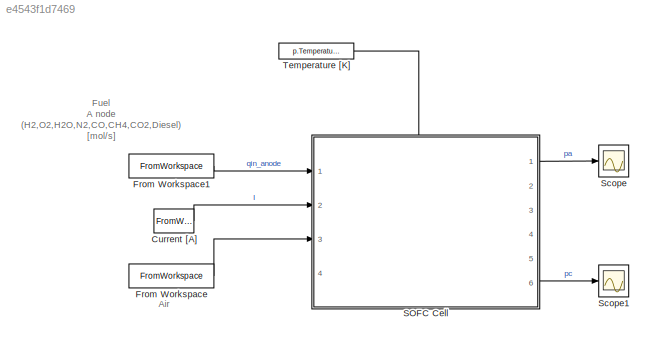
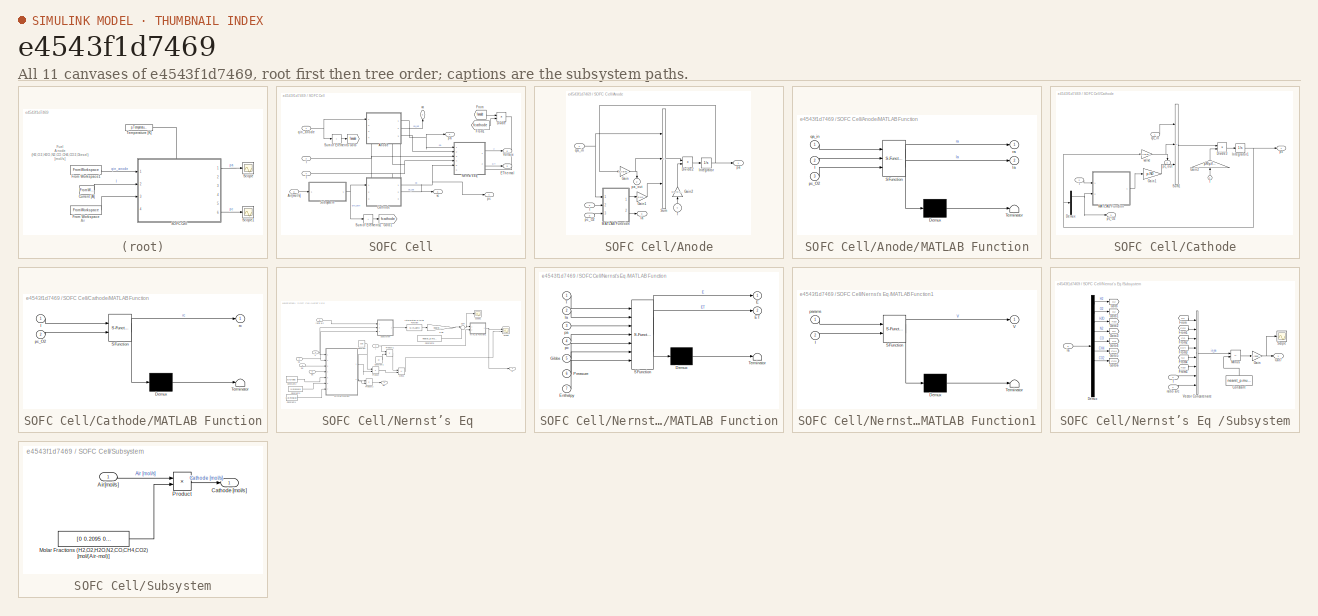
[diagram: thumbnail index - all 11 canvases of the model, root first then tree order]
MODEL slx_e4543f1d7469
KIND model
CONFIG AbsTol = auto
CONFIG EnableMultiTasking = off
CONFIG FixedStep = auto
CONFIG MaxStep = auto
CONFIG MinStep = auto
CONFIG RelTol = 1e-3
CONFIG SampleTimeConstraint = Unconstrained
CONFIG SolverName = VariableStepAuto
CONFIG StartTime = 0.0
CONFIG StopTime = 1037
BLOCK [FromWorkspace] Current [A]
  VariableName = I_signal
BLOCK [FromWorkspace] From Workspace
  VariableName = air_mol_inlet_flow
BLOCK [FromWorkspace] From Workspace1
  VariableName = anode_mol_inlet_flow
BLOCK [SubSystem] SOFC Cell
  PortSchema = {"entries":[{"content":{"sides":[{"content":{"connectorIds":["In1","In2","In3"]},"type":"ConnectorPlacement.EquallySpacedRectSide","uuid":"6cca8e4f-6db2-48de-a60a-b6fbc16877c6"},{"content":{"connectorIds":["Out1","Out2","Out3","Out4"],"side":"RIGHT"},"type":"ConnectorPlacement.EquallySpacedRectSide","uuid":"c481f6d1-531d-4215-9ae0-5807376c0625"},{"content":{"connectorIds":["In4"],"side":"TOP"},"ty...<+435ch>
  Ports = [4, 6]
  RequestExecContextInheritance = off
BLOCK [Inport] SOFC Cell/Air[mol//s]
  Port = 3
BLOCK [SubSystem] SOFC Cell/Anode
  NameLocation = top
  PortSchema = {"entries":[{"content":{"sides":[{"content":{"connectorIds":["In1"]},"type":"ConnectorPlacement.EquallySpacedRectSide","uuid":"1d27f661-9cb9-482d-ac43-89e84d52643b"},{"content":{"connectorIds":["Out1","Out2","Out3"],"side":"RIGHT"},"type":"ConnectorPlacement.EquallySpacedRectSide","uuid":"62ac897d-5819-4e9c-a19f-e210851aefa2"},{"content":{"connectorIds":[],"side":"TOP"},"type":"ConnectorPlacement....<+415ch>
  Ports = [4, 3]
  RequestExecContextInheritance = off
BLOCK [Product] SOFC Cell/Anode/Divide2
  Inputs = **
  Ports = [2, 1]
BLOCK [Gain] SOFC Cell/Anode/Gain
  Gain = p.ValveConstants_an
BLOCK [Gain] SOFC Cell/Anode/Gain1
  Gain = p.N0
BLOCK [Gain] SOFC Cell/Anode/Gain2
  Gain = p.R/p.Vanode
  NameLocation = right
BLOCK [Inport] SOFC Cell/Anode/I
  Port = 2
BLOCK [Integrator] SOFC Cell/Anode/Integrator
  InitialCondition = x0_SOFC.pa
  Ports = [1, 1]
BLOCK [SubSystem] SOFC Cell/Anode/MATLAB Function
  ErrorFcn = Stateflow.Translate.translate
  PermitHierarchicalResolution = ExplicitOnly
  Ports = [3, 2]
  RequestExecContextInheritance = off
  SFBlockType = MATLAB Function
  TreatAsAtomicUnit = on
BLOCK [Demux] SOFC Cell/Anode/MATLAB Function/ Demux 
  Outputs = 1
  Ports = [1, 1]
BLOCK [S-Function] SOFC Cell/Anode/MATLAB Function/ SFunction 
  EnableBusSupport = on
  FunctionName = sf_sfun
  PortCounts = [3 3]
  Ports = [3, 3]
  SFcnIsStateOwnerBlock = off
  SFunctionDeploymentMode = off
  Tag = Stateflow S-Function 2
BLOCK [Terminator] SOFC Cell/Anode/MATLAB Function/ Terminator 
BLOCK [Inport] SOFC Cell/Anode/MATLAB Function/I
  Port = 2
BLOCK [Outport] SOFC Cell/Anode/MATLAB Function/la
  Port = 2
BLOCK [Inport] SOFC Cell/Anode/MATLAB Function/pc_O2
  Port = 3
BLOCK [Inport] SOFC Cell/Anode/MATLAB Function/qa_in
BLOCK [Outport] SOFC Cell/Anode/MATLAB Function/ra
BLOCK [Sum] SOFC Cell/Anode/Sum
  IconShape = rectangular
  Inputs = |+-+
  Ports = [3, 1]
BLOCK [Inport] SOFC Cell/Anode/T
  NameLocation = right
  Port = 4
BLOCK [Outport] SOFC Cell/Anode/la
  Port = 3
BLOCK [Outport] SOFC Cell/Anode/pa
BLOCK [Outport] SOFC Cell/Anode/pa_out
  NameLocation = left
  Port = 2
BLOCK [Inport] SOFC Cell/Anode/pc_O2
  Port = 3
BLOCK [Inport] SOFC Cell/Anode/qa_in
BLOCK [SubSystem] SOFC Cell/Cathode
  PortSchema = {"entries":[{"content":{"sides":[{"content":{"connectorIds":["In1"]},"type":"ConnectorPlacement.EquallySpacedRectSide","uuid":"1d27f661-9cb9-482d-ac43-89e84d52643b"},{"content":{"connectorIds":["Out1","Out2"],"side":"RIGHT"},"type":"ConnectorPlacement.EquallySpacedRectSide","uuid":"62ac897d-5819-4e9c-a19f-e210851aefa2"},{"content":{"connectorIds":["In2","Out3","In3"],"side":"TOP"},"type":"Connecto...<+265ch>
  Ports = [3, 3]
  RequestExecContextInheritance = off
BLOCK [Demux] SOFC Cell/Cathode/Demux
  Outputs = 8
  Ports = [1, 8]
BLOCK [Product] SOFC Cell/Cathode/Divide3
  Inputs = **
  Ports = [2, 1]
BLOCK [Gain] SOFC Cell/Cathode/Gain1
  Gain = p.N0
BLOCK [Gain] SOFC Cell/Cathode/Gain2
  Gain = p.R/p.Vcatho
  NameLocation = right
BLOCK [Inport] SOFC Cell/Cathode/I
  Port = 2
BLOCK [Integrator] SOFC Cell/Cathode/Integrator1
  InitialCondition = x0_SOFC.pc
  Ports = [1, 1]
BLOCK [SubSystem] SOFC Cell/Cathode/MATLAB Function
  ErrorFcn = Stateflow.Translate.translate
  PermitHierarchicalResolution = ExplicitOnly
  Ports = [2, 1]
  RequestExecContextInheritance = off
  SFBlockType = MATLAB Function
  TreatAsAtomicUnit = on
BLOCK [Demux] SOFC Cell/Cathode/MATLAB Function/ Demux 
  Outputs = 1
  Ports = [1, 1]
BLOCK [S-Function] SOFC Cell/Cathode/MATLAB Function/ SFunction 
  EnableBusSupport = on
  FunctionName = sf_sfun
  PortCounts = [2 2]
  Ports = [2, 2]
  SFcnIsStateOwnerBlock = off
  SFunctionDeploymentMode = off
  Tag = Stateflow S-Function 1
BLOCK [Terminator] SOFC Cell/Cathode/MATLAB Function/ Terminator 
BLOCK [Inport] SOFC Cell/Cathode/MATLAB Function/I
BLOCK [Inport] SOFC Cell/Cathode/MATLAB Function/pc_O2
  Port = 2
BLOCK [Outport] SOFC Cell/Cathode/MATLAB Function/rc
BLOCK [Sum] SOFC Cell/Cathode/Sum1
  IconShape = rectangular
  Inputs = |+-+
  Ports = [3, 1]
BLOCK [Inport] SOFC Cell/Cathode/T
  NameLocation = right
  Port = 3
BLOCK [Outport] SOFC Cell/Cathode/pc
BLOCK [Outport] SOFC Cell/Cathode/pc_O2
  Port = 3
BLOCK [Outport] SOFC Cell/Cathode/pc_out
  NameLocation = left
  Port = 2
BLOCK [Inport] SOFC Cell/Cathode/qc_in
BLOCK [Gain] SOFC Cell/Cathode/valve
  Gain = p.ValveConstants_cath
BLOCK [Product] SOFC Cell/Divide
  Inputs = /*
  Ports = [2, 1]
BLOCK [Outport] SOFC Cell/EThermal
  Port = 5
BLOCK [From] SOFC Cell/From
  GotoTag = fanode
BLOCK [From] SOFC Cell/From1
  GotoTag = fcathode
BLOCK [Goto] SOFC Cell/Goto
  GotoTag = fanode
BLOCK [Goto] SOFC Cell/Goto1
  GotoTag = fcathode
BLOCK [Inport] SOFC Cell/I
  Port = 2
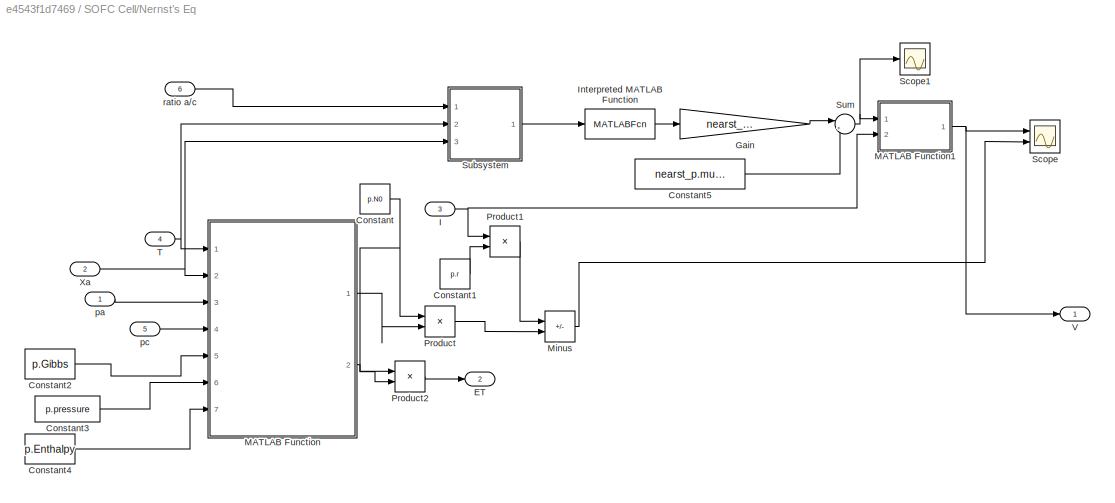
BLOCK [SubSystem] SOFC Cell/Nernst’s Eq 
  PortSchema = {"entries":[{"content":{"sides":[{"content":{"connectorIds":["In1","In2","In3","In4","In5"]},"type":"ConnectorPlacement.EquallySpacedRectSide","uuid":"1b300774-e64d-4a8a-a2e9-ecdc71723fee"},{"content":{"connectorIds":["Out1","Out2"],"side":"RIGHT"},"type":"ConnectorPlacement.EquallySpacedRectSide","uuid":"354a04f1-cc66-4a63-8c50-8080316e29e9"},{"content":{"connectorIds":["In6"],"side":"TOP"},"type...<+276ch>
  Ports = [6, 2]
  RequestExecContextInheritance = off
BLOCK [Constant] SOFC Cell/Nernst’s Eq /Constant
  Value = p.N0
BLOCK [Constant] SOFC Cell/Nernst’s Eq /Constant1
  Value = p.r
BLOCK [Constant] SOFC Cell/Nernst’s Eq /Constant2
  OutDataTypeStr = Bus:slBus1
  Value = p.Gibbs
BLOCK [Constant] SOFC Cell/Nernst’s Eq /Constant3
  Value = p.pressure
BLOCK [Constant] SOFC Cell/Nernst’s Eq /Constant4
  OutDataTypeStr = Bus:slBus1
  Value = p.Enthalpy
BLOCK [Constant] SOFC Cell/Nernst’s Eq /Constant5
  Value = nearst_p.mu_out
BLOCK [Outport] SOFC Cell/Nernst’s Eq /ET
  Port = 2
BLOCK [Gain] SOFC Cell/Nernst’s Eq /Gain
  Gain = nearst_p.std_out
BLOCK [Inport] SOFC Cell/Nernst’s Eq /I
  Port = 3
BLOCK [MATLABFcn] SOFC Cell/Nernst’s Eq /Interpreted MATLAB Function
  MATLABFcn = nearst_nn
  Ports = [1, 1]
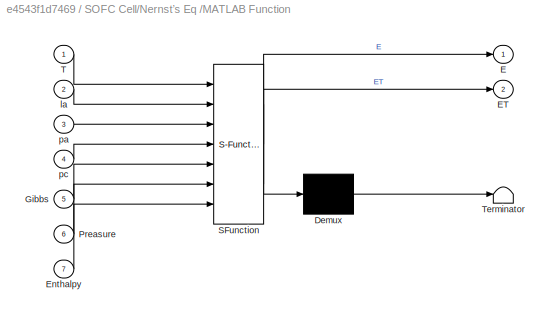
BLOCK [SubSystem] SOFC Cell/Nernst’s Eq /MATLAB Function
  ErrorFcn = Stateflow.Translate.translate
  PermitHierarchicalResolution = ExplicitOnly
  Ports = [7, 2]
  RequestExecContextInheritance = off
  SFBlockType = MATLAB Function
  TreatAsAtomicUnit = on
BLOCK [Demux] SOFC Cell/Nernst’s Eq /MATLAB Function/ Demux 
  Outputs = 1
  Ports = [1, 1]
BLOCK [S-Function] SOFC Cell/Nernst’s Eq /MATLAB Function/ SFunction 
  EnableBusSupport = on
  FunctionName = sf_sfun
  PortCounts = [7 3]
  Ports = [7, 3]
  SFcnIsStateOwnerBlock = off
  SFunctionDeploymentMode = off
  Tag = Stateflow S-Function 3
BLOCK [Terminator] SOFC Cell/Nernst’s Eq /MATLAB Function/ Terminator 
BLOCK [Outport] SOFC Cell/Nernst’s Eq /MATLAB Function/E
BLOCK [Outport] SOFC Cell/Nernst’s Eq /MATLAB Function/ET
  Port = 2
BLOCK [Inport] SOFC Cell/Nernst’s Eq /MATLAB Function/Enthalpy
  Port = 7
BLOCK [Inport] SOFC Cell/Nernst’s Eq /MATLAB Function/Gibbs
  Port = 5
BLOCK [Inport] SOFC Cell/Nernst’s Eq /MATLAB Function/Preasure
  Port = 6
BLOCK [Inport] SOFC Cell/Nernst’s Eq /MATLAB Function/T
BLOCK [Inport] SOFC Cell/Nernst’s Eq /MATLAB Function/la
  Port = 2
BLOCK [Inport] SOFC Cell/Nernst’s Eq /MATLAB Function/pa
  Port = 3
BLOCK [Inport] SOFC Cell/Nernst’s Eq /MATLAB Function/pc
  Port = 4
BLOCK [SubSystem] SOFC Cell/Nernst’s Eq /MATLAB Function1
  ErrorFcn = Stateflow.Translate.translate
  PermitHierarchicalResolution = ExplicitOnly
  Ports = [2, 1]
  RequestExecContextInheritance = off
  SFBlockType = MATLAB Function
  TreatAsAtomicUnit = on
BLOCK [Demux] SOFC Cell/Nernst’s Eq /MATLAB Function1/ Demux 
  Outputs = 1
  Ports = [1, 1]
BLOCK [S-Function] SOFC Cell/Nernst’s Eq /MATLAB Function1/ SFunction 
  EnableBusSupport = on
  FunctionName = sf_sfun
  PortCounts = [2 2]
  Ports = [2, 2]
  SFcnIsStateOwnerBlock = off
  SFunctionDeploymentMode = off
  Tag = Stateflow S-Function 4
BLOCK [Terminator] SOFC Cell/Nernst’s Eq /MATLAB Function1/ Terminator 
BLOCK [Inport] SOFC Cell/Nernst’s Eq /MATLAB Function1/I
  Port = 2
BLOCK [Outport] SOFC Cell/Nernst’s Eq /MATLAB Function1/V
BLOCK [Inport] SOFC Cell/Nernst’s Eq /MATLAB Function1/params
BLOCK [Sum] SOFC Cell/Nernst’s Eq /Minus
  IconShape = rectangular
  Inputs = -+
  Ports = [2, 1]
BLOCK [Product] SOFC Cell/Nernst’s Eq /Product
  Ports = [2, 1]
BLOCK [Product] SOFC Cell/Nernst’s Eq /Product1
  Ports = [2, 1]
BLOCK [Product] SOFC Cell/Nernst’s Eq /Product2
  Ports = [2, 1]
BLOCK [Scope] SOFC Cell/Nernst’s Eq /Scope
  Floating = off
  NumInputPorts = 2
  Ports = [2]
  ScopeSpecificationString = Simulink.scopes.TimeScopeBlockCfg('CurrentConfiguration', extmgr.ConfigurationSet(extmgr.Configuration('Core','General UI',true),extmgr.Configuration('Core','Source UI',true),extmgr.Configuration('Sources','WiredSimulink',true,'DataLoggingVariableName','ScopeData2'),extmgr.Configuration('Visuals','Time Domain',true,'SerializedDisplays',{struct('MinYLimReal','12.6732','MaxYLimReal','30.95476','YLab...<+1409ch>
BLOCK [Scope] SOFC Cell/Nernst’s Eq /Scope1
  Floating = off
  NumInputPorts = 1
  Ports = [1]
  ScopeSpecificationString = Simulink.scopes.TimeScopeBlockCfg('CurrentConfiguration', extmgr.ConfigurationSet(extmgr.Configuration('Core','General UI',true),extmgr.Configuration('Core','Source UI',true),extmgr.Configuration('Sources','WiredSimulink',true,'DataLoggingVariableName','ScopeData3'),extmgr.Configuration('Visuals','Time Domain',true,'SerializedDisplays',{struct('MinYLimReal','-4.125','MaxYLimReal','29.65872','YLabe...<+1427ch>
BLOCK [SubSystem] SOFC Cell/Nernst’s Eq /Subsystem
  Ports = [3, 1]
  RequestExecContextInheritance = off
BLOCK [Constant] SOFC Cell/Nernst’s Eq /Subsystem/Constant
  NameLocation = right
  Value = nearst_p.mu_in
BLOCK [Demux] SOFC Cell/Nernst’s Eq /Subsystem/Demux
  Outputs = 10
  Ports = [1, 10]
BLOCK [From] SOFC Cell/Nernst’s Eq /Subsystem/From
  GotoTag = H2
BLOCK [From] SOFC Cell/Nernst’s Eq /Subsystem/From1
  GotoTag = CO2
BLOCK [From] SOFC Cell/Nernst’s Eq /Subsystem/From2
  GotoTag = CO
BLOCK [From] SOFC Cell/Nernst’s Eq /Subsystem/From3
  GotoTag = CH4
BLOCK [From] SOFC Cell/Nernst’s Eq /Subsystem/From4
  GotoTag = N2
BLOCK [From] SOFC Cell/Nernst’s Eq /Subsystem/From5
  GotoTag = H2O
BLOCK [Gain] SOFC Cell/Nernst’s Eq /Subsystem/Gain
  Gain = 1./nearst_p.std_in
BLOCK [Goto] SOFC Cell/Nernst’s Eq /Subsystem/Goto
  GotoTag = H2
BLOCK [Goto] SOFC Cell/Nernst’s Eq /Subsystem/Goto1
  GotoTag = O2
BLOCK [Goto] SOFC Cell/Nernst’s Eq /Subsystem/Goto2
  GotoTag = H2O
BLOCK [Goto] SOFC Cell/Nernst’s Eq /Subsystem/Goto3
  GotoTag = N2
BLOCK [Goto] SOFC Cell/Nernst’s Eq /Subsystem/Goto4
  GotoTag = CO
BLOCK [Goto] SOFC Cell/Nernst’s Eq /Subsystem/Goto5
  GotoTag = CH4
BLOCK [Goto] SOFC Cell/Nernst’s Eq /Subsystem/Goto6
  GotoTag = CO2
BLOCK [Sum] SOFC Cell/Nernst’s Eq /Subsystem/Minus
  IconShape = rectangular
  Inputs = +-
  Ports = [2, 1]
BLOCK [Outport] SOFC Cell/Nernst’s Eq /Subsystem/Out7
BLOCK [Scope] SOFC Cell/Nernst’s Eq /Subsystem/Scope
  Floating = off
  NumInputPorts = 1
  Ports = [1]
  ScopeSpecificationString = Simulink.scopes.TimeScopeBlockCfg('CurrentConfiguration', extmgr.ConfigurationSet(extmgr.Configuration('Core','General UI',true),extmgr.Configuration('Core','Source UI',true),extmgr.Configuration('Sources','WiredSimulink',true,'DataLoggingVariableName','ScopeData1'),extmgr.Configuration('Visuals','Time Domain',true,'SerializedDisplays',{struct('MinYLimReal','-1.13305','MaxYLimReal','1.86452','YLab...<+1483ch>
BLOCK [Inport] SOFC Cell/Nernst’s Eq /Subsystem/T
  Port = 2
BLOCK [Concatenate] SOFC Cell/Nernst’s Eq /Subsystem/Vector Concatenate
  NumInputs = 8
  Ports = [8, 1]
BLOCK [Inport] SOFC Cell/Nernst’s Eq /Subsystem/la
  Port = 3
BLOCK [Inport] SOFC Cell/Nernst’s Eq /Subsystem/ratio a//c
BLOCK [Sum] SOFC Cell/Nernst’s Eq /Sum
  Inputs = |++
  Ports = [2, 1]
BLOCK [Inport] SOFC Cell/Nernst’s Eq /T
  Port = 4
BLOCK [Outport] SOFC Cell/Nernst’s Eq /V
BLOCK [Inport] SOFC Cell/Nernst’s Eq /Xa
  Port = 2
BLOCK [Inport] SOFC Cell/Nernst’s Eq /pa
BLOCK [Inport] SOFC Cell/Nernst’s Eq /pc
  Port = 5
BLOCK [Inport] SOFC Cell/Nernst’s Eq /ratio a//c
  Port = 6
BLOCK [SubSystem] SOFC Cell/Subsystem
  Ports = [1, 1]
  RequestExecContextInheritance = off
BLOCK [Inport] SOFC Cell/Subsystem/Air[mol//s]
BLOCK [Outport] SOFC Cell/Subsystem/Cathode [mol//s]
BLOCK [Constant] SOFC Cell/Subsystem/Molar Fractions (H2,O2,H2O,N2,CO,CH4,CO2) [mol//(Air-mol)]
  Value = [0 0.2095 0 0.7808 0 0 0 0 0 0]
BLOCK [Product] SOFC Cell/Subsystem/Product
  Ports = [2, 1]
BLOCK [Sum] SOFC Cell/Sum of Elements
  IconShape = rectangular
  Inputs = +
  Ports = [1, 1]
BLOCK [Sum] SOFC Cell/Sum of Elements1
  IconShape = rectangular
  Inputs = +
  Ports = [1, 1]
BLOCK [Inport] SOFC Cell/T
  Port = 4
BLOCK [Outport] SOFC Cell/Voltaje
  Port = 6
BLOCK [Outport] SOFC Cell/pa
BLOCK [Outport] SOFC Cell/pc
  Port = 4
BLOCK [Inport] SOFC Cell/qin_anode
BLOCK [Outport] SOFC Cell/va
  NameLocation = right
  Port = 2
BLOCK [Outport] SOFC Cell/vc
  Port = 3
BLOCK [Scope] Scope
  Floating = off
  NumInputPorts = 1
  Ports = [1]
  ScopeSpecificationString = Simulink.scopes.TimeScopeBlockCfg('CurrentConfiguration', extmgr.ConfigurationSet(extmgr.Configuration('Core','General UI',true),extmgr.Configuration('Core','Source UI',true),extmgr.Configuration('Sources','WiredSimulink',true,'DataLoggingVariableName','ScopeData1'),extmgr.Configuration('Visuals','Time Domain',true,'SerializedDisplays',{struct('MinYLimReal','-5.5002','MaxYLimReal','49.50178','YLab...<+1442ch>
BLOCK [Scope] Scope1
  Floating = off
  NumInputPorts = 1
  Ports = [1]
  ScopeSpecificationString = Simulink.scopes.TimeScopeBlockCfg('CurrentConfiguration', extmgr.ConfigurationSet(extmgr.Configuration('Core','General UI',true),extmgr.Configuration('Core','Source UI',true),extmgr.Configuration('Sources','WiredSimulink',true,'DataLoggingVariableName','ScopeData1'),extmgr.Configuration('Visuals','Time Domain',true,'SerializedDisplays',{struct('MinYLimReal','-7.63549','MaxYLimReal','36.27041','YLa...<+1480ch>
BLOCK [Constant] Temperature [K]
  Value = p.Temperature
ANNOTATION (root): Fuel A node (H2,O2,H2O,N2,CO,CH4,CO2,Diesel) [mol/s]
ANNOTATION (root): Air
LINE Current [A]:1 -> SOFC Cell:2
LINE From Workspace1:1 -> SOFC Cell:1
LINE From Workspace:1 -> SOFC Cell:3
LINE SOFC Cell/Air[mol//s]:1 -> SOFC Cell/Subsystem:1
LINE SOFC Cell/Anode/Divide2:1 -> SOFC Cell/Anode/Integrator:1
LINE SOFC Cell/Anode/Gain1:1 -> SOFC Cell/Anode/Sum:3
LINE SOFC Cell/Anode/Gain2:1 -> SOFC Cell/Anode/Divide2:2
NET SOFC Cell/Anode/Gain:1 -> SOFC Cell/Anode/Sum:2, SOFC Cell/Anode/pa_out:1
LINE SOFC Cell/Anode/I:1 -> SOFC Cell/Anode/MATLAB Function:2
NET SOFC Cell/Anode/Integrator:1 -> SOFC Cell/Anode/Gain:1, SOFC Cell/Anode/pa:1
LINE SOFC Cell/Anode/MATLAB Function:1 -> SOFC Cell/Anode/Gain1:1
LINE SOFC Cell/Anode/MATLAB Function:2 -> SOFC Cell/Anode/la:1
LINE SOFC Cell/Anode/Sum:1 -> SOFC Cell/Anode/Divide2:1
LINE SOFC Cell/Anode/T:1 -> SOFC Cell/Anode/Gain2:1
LINE SOFC Cell/Anode/pc_O2:1 -> SOFC Cell/Anode/MATLAB Function:3
NET SOFC Cell/Anode/qa_in:1 -> SOFC Cell/Anode/MATLAB Function:1, SOFC Cell/Anode/Sum:1
NET SOFC Cell/Anode:1 -> SOFC Cell/Nernst’s Eq :1, SOFC Cell/pa:1
LINE SOFC Cell/Anode:2 -> SOFC Cell/va:1
LINE SOFC Cell/Anode:3 -> SOFC Cell/Nernst’s Eq :2
NET SOFC Cell/Cathode/Demux:2 -> SOFC Cell/Cathode/MATLAB Function:2, SOFC Cell/Cathode/pc_O2:1
LINE SOFC Cell/Cathode/Divide3:1 -> SOFC Cell/Cathode/Integrator1:1
LINE SOFC Cell/Cathode/Gain1:1 -> SOFC Cell/Cathode/Sum1:3
LINE SOFC Cell/Cathode/Gain2:1 -> SOFC Cell/Cathode/Divide3:2
LINE SOFC Cell/Cathode/I:1 -> SOFC Cell/Cathode/MATLAB Function:1
NET SOFC Cell/Cathode/Integrator1:1 -> SOFC Cell/Cathode/Demux:1, SOFC Cell/Cathode/pc:1, SOFC Cell/Cathode/valve:1
LINE SOFC Cell/Cathode/MATLAB Function:1 -> SOFC Cell/Cathode/Gain1:1
LINE SOFC Cell/Cathode/Sum1:1 -> SOFC Cell/Cathode/Divide3:1
LINE SOFC Cell/Cathode/T:1 -> SOFC Cell/Cathode/Gain2:1
LINE SOFC Cell/Cathode/qc_in:1 -> SOFC Cell/Cathode/Sum1:1
NET SOFC Cell/Cathode/valve:1 -> SOFC Cell/Cathode/Sum1:2, SOFC Cell/Cathode/pc_out:1
NET SOFC Cell/Cathode:1 -> SOFC Cell/Nernst’s Eq :5, SOFC Cell/pc:1
LINE SOFC Cell/Cathode:2 -> SOFC Cell/vc:1
LINE SOFC Cell/Cathode:3 -> SOFC Cell/Anode:3
LINE SOFC Cell/Divide:1 -> SOFC Cell/Nernst’s Eq :6
LINE SOFC Cell/From1:1 -> SOFC Cell/Divide:2
LINE SOFC Cell/From:1 -> SOFC Cell/Divide:1
NET SOFC Cell/I:1 -> SOFC Cell/Anode:2, SOFC Cell/Cathode:2, SOFC Cell/Nernst’s Eq :3
LINE SOFC Cell/Nernst’s Eq /Constant1:1 -> SOFC Cell/Nernst’s Eq /Product1:2
LINE SOFC Cell/Nernst’s Eq /Constant2:1 -> SOFC Cell/Nernst’s Eq /MATLAB Function:5
LINE SOFC Cell/Nernst’s Eq /Constant3:1 -> SOFC Cell/Nernst’s Eq /MATLAB Function:6
LINE SOFC Cell/Nernst’s Eq /Constant4:1 -> SOFC Cell/Nernst’s Eq /MATLAB Function:7
LINE SOFC Cell/Nernst’s Eq /Constant5:1 -> SOFC Cell/Nernst’s Eq /Sum:2
NET SOFC Cell/Nernst’s Eq /Constant:1 -> SOFC Cell/Nernst’s Eq /Product2:1, SOFC Cell/Nernst’s Eq /Product:1
LINE SOFC Cell/Nernst’s Eq /Gain:1 -> SOFC Cell/Nernst’s Eq /Sum:1
NET SOFC Cell/Nernst’s Eq /I:1 -> SOFC Cell/Nernst’s Eq /MATLAB Function1:2, SOFC Cell/Nernst’s Eq /Product1:1
LINE SOFC Cell/Nernst’s Eq /Interpreted MATLAB Function:1 -> SOFC Cell/Nernst’s Eq /Gain:1
NET SOFC Cell/Nernst’s Eq /MATLAB Function1:1 -> SOFC Cell/Nernst’s Eq /Scope:1, SOFC Cell/Nernst’s Eq /V:1
LINE SOFC Cell/Nernst’s Eq /MATLAB Function:1 -> SOFC Cell/Nernst’s Eq /Product:2
LINE SOFC Cell/Nernst’s Eq /MATLAB Function:2 -> SOFC Cell/Nernst’s Eq /Product2:2
LINE SOFC Cell/Nernst’s Eq /Minus:1 -> SOFC Cell/Nernst’s Eq /Scope:2
LINE SOFC Cell/Nernst’s Eq /Product1:1 -> SOFC Cell/Nernst’s Eq /Minus:1
LINE SOFC Cell/Nernst’s Eq /Product2:1 -> SOFC Cell/Nernst’s Eq /ET:1
LINE SOFC Cell/Nernst’s Eq /Product:1 -> SOFC Cell/Nernst’s Eq /Minus:2
LINE SOFC Cell/Nernst’s Eq /Subsystem/Constant:1 -> SOFC Cell/Nernst’s Eq /Subsystem/Minus:2
LINE SOFC Cell/Nernst’s Eq /Subsystem/Demux:1 -> SOFC Cell/Nernst’s Eq /Subsystem/Goto:1
LINE SOFC Cell/Nernst’s Eq /Subsystem/Demux:2 -> SOFC Cell/Nernst’s Eq /Subsystem/Goto1:1
LINE SOFC Cell/Nernst’s Eq /Subsystem/Demux:3 -> SOFC Cell/Nernst’s Eq /Subsystem/Goto2:1
LINE SOFC Cell/Nernst’s Eq /Subsystem/Demux:4 -> SOFC Cell/Nernst’s Eq /Subsystem/Goto3:1
LINE SOFC Cell/Nernst’s Eq /Subsystem/Demux:5 -> SOFC Cell/Nernst’s Eq /Subsystem/Goto4:1
LINE SOFC Cell/Nernst’s Eq /Subsystem/Demux:6 -> SOFC Cell/Nernst’s Eq /Subsystem/Goto5:1
LINE SOFC Cell/Nernst’s Eq /Subsystem/Demux:7 -> SOFC Cell/Nernst’s Eq /Subsystem/Goto6:1
LINE SOFC Cell/Nernst’s Eq /Subsystem/From1:1 -> SOFC Cell/Nernst’s Eq /Subsystem/Vector Concatenate:2
LINE SOFC Cell/Nernst’s Eq /Subsystem/From2:1 -> SOFC Cell/Nernst’s Eq /Subsystem/Vector Concatenate:3
LINE SOFC Cell/Nernst’s Eq /Subsystem/From3:1 -> SOFC Cell/Nernst’s Eq /Subsystem/Vector Concatenate:4
LINE SOFC Cell/Nernst’s Eq /Subsystem/From4:1 -> SOFC Cell/Nernst’s Eq /Subsystem/Vector Concatenate:5
LINE SOFC Cell/Nernst’s Eq /Subsystem/From5:1 -> SOFC Cell/Nernst’s Eq /Subsystem/Vector Concatenate:6
LINE SOFC Cell/Nernst’s Eq /Subsystem/From:1 -> SOFC Cell/Nernst’s Eq /Subsystem/Vector Concatenate:1
NET SOFC Cell/Nernst’s Eq /Subsystem/Gain:1 -> SOFC Cell/Nernst’s Eq /Subsystem/Out7:1, SOFC Cell/Nernst’s Eq /Subsystem/Scope:1
LINE SOFC Cell/Nernst’s Eq /Subsystem/Minus:1 -> SOFC Cell/Nernst’s Eq /Subsystem/Gain:1
LINE SOFC Cell/Nernst’s Eq /Subsystem/T:1 -> SOFC Cell/Nernst’s Eq /Subsystem/Vector Concatenate:7
LINE SOFC Cell/Nernst’s Eq /Subsystem/Vector Concatenate:1 -> SOFC Cell/Nernst’s Eq /Subsystem/Minus:1
LINE SOFC Cell/Nernst’s Eq /Subsystem/la:1 -> SOFC Cell/Nernst’s Eq /Subsystem/Demux:1
LINE SOFC Cell/Nernst’s Eq /Subsystem/ratio a//c:1 -> SOFC Cell/Nernst’s Eq /Subsystem/Vector Concatenate:8
LINE SOFC Cell/Nernst’s Eq /Subsystem:1 -> SOFC Cell/Nernst’s Eq /Interpreted MATLAB Function:1
NET SOFC Cell/Nernst’s Eq /Sum:1 -> SOFC Cell/Nernst’s Eq /MATLAB Function1:1, SOFC Cell/Nernst’s Eq /Scope1:1
NET SOFC Cell/Nernst’s Eq /T:1 -> SOFC Cell/Nernst’s Eq /MATLAB Function:1, SOFC Cell/Nernst’s Eq /Subsystem:2
NET SOFC Cell/Nernst’s Eq /Xa:1 -> SOFC Cell/Nernst’s Eq /MATLAB Function:2, SOFC Cell/Nernst’s Eq /Subsystem:3
LINE SOFC Cell/Nernst’s Eq /pa:1 -> SOFC Cell/Nernst’s Eq /MATLAB Function:3
LINE SOFC Cell/Nernst’s Eq /pc:1 -> SOFC Cell/Nernst’s Eq /MATLAB Function:4
LINE SOFC Cell/Nernst’s Eq /ratio a//c:1 -> SOFC Cell/Nernst’s Eq /Subsystem:1
LINE SOFC Cell/Nernst’s Eq :1 -> SOFC Cell/Voltaje:1
LINE SOFC Cell/Nernst’s Eq :2 -> SOFC Cell/EThermal:1
LINE SOFC Cell/Subsystem/Air[mol//s]:1 -> SOFC Cell/Subsystem/Product:1
LINE SOFC Cell/Subsystem/Molar Fractions (H2,O2,H2O,N2,CO,CH4,CO2) [mol//(Air-mol)]:1 -> SOFC Cell/Subsystem/Product:2
LINE SOFC Cell/Subsystem/Product:1 -> SOFC Cell/Subsystem/Cathode [mol//s]:1
NET SOFC Cell/Subsystem:1 -> SOFC Cell/Cathode:1, SOFC Cell/Sum of Elements1:1
LINE SOFC Cell/Sum of Elements1:1 -> SOFC Cell/Goto1:1
LINE SOFC Cell/Sum of Elements:1 -> SOFC Cell/Goto:1
NET SOFC Cell/T:1 -> SOFC Cell/Anode:4, SOFC Cell/Cathode:3, SOFC Cell/Nernst’s Eq :4
NET SOFC Cell/qin_anode:1 -> SOFC Cell/Anode:1, SOFC Cell/Sum of Elements:1
LINE SOFC Cell:1 -> Scope:1
LINE SOFC Cell:4 -> Scope1:1
LINE Temperature [K]:1 -> SOFC Cell:4
note: NET lines group one-source signal fan-out (src -> all destinations, sorted); 1:1 wires keep LINE
CHART SOFC Cell/Cathode/MATLAB Function states=1 transitions=1
  STATE_LABEL 'eML_blk_kernel()'
  STATE_LABEL 'SCRIPT:\nfunction rc = fcn(I,pc_O2)\n\n%l = qc_in/sum(qc_in);\n\n% l_H2  = l(1);\n% l_O2  = l(2);\n% l_H2O = l(3);\n% l_N2  = l(4);\n% l_CO  = l(5);\n% l_CH4 = l(6);\n% l_CO2 = l(7);\n%\n% alpha_H_2 = l_H2;\n% alpha_CO  = l_CO;\n% alpha_CH4 = l_CH4;\n% alpha_O2  = 0.5*(l_H2+l_CO+4*l_CH4);\n% beta_H2O  = l_H2 + 2*l_CH4;\n% beta_CO2  = l_CO + 2*l_CH4;\n%\nF = 96485.3329; \n\n% r_H2  = -alpha_H_2*I;\n% r_CO  = -alpha_CO*I;...<+162ch>'
CHART SOFC Cell/Anode/MATLAB Function states=1 transitions=1
  STATE_LABEL 'eML_blk_kernel()'
  STATE_LABEL 'SCRIPT:\nfunction [ra,la] = fcn(qa_in,I,pc_O2)\n\nla = qa_in/sum(qa_in);\n\nl_H2  = la(1);\n%l_O2  = l(2);\n%l_H2O = l(3);\n%l_N2  = l(4);\nl_CO  = la(5);\nl_CH4 = la(6);\n%l_CO2 = l(7);\n%\nalpha_H2 = l_H2;\nalpha_CO  = l_CO;\nalpha_CH4 = l_CH4;\n%alpha_O2  = 0.5*(l_H2+l_CO+4*l_CH4);\nbeta_H2O  = l_H2 + 2*l_CH4;\nbeta_CO2  = l_CO + l_CH4;\n%\nF = 96485.3329; \nne = 2*(l_H2 + l_CO + 4*l_CH4);\nI = I/(F*ne);\n\nr_H2  = -a...<+177ch>'
CHART SOFC Cell/Nernst’s Eq /MATLAB Function states=1 transitions=1
  STATE_LABEL 'eML_blk_kernel()'
  STATE_LABEL 'SCRIPT:\nfunction [E,ET]= fcn(T, la,pa,pc,Gibbs,Preasure, Enthalpy)\n%\n\nl_H2  = la(1);\nl_CO  = la(5);\nl_CH4 = la(6);\n%\nalpha_H2 = l_H2;\nalpha_CO  = l_CO;\nalpha_CH4 = l_CH4;\nalpha_O2  = 0.5*( l_H2 + l_CO + 4*l_CH4);\nbeta_H2O  = l_H2 + 2*l_CH4;\nbeta_CO2  = l_CO + l_CH4;\n\n%\npa_H2 = pa(1);\npa_O2 = pa(2);\npa_H2O= pa(3);\npa_CO = pa(5);\npa_CH4= pa(6);\npa_CO2= pa(7);\n%\npc_H2 = pc(1);\npc_O2 = pc(2);\npc_H2O= ...<+1008ch>'
CHART SOFC Cell/Nernst’s Eq /MATLAB Function1 states=1 transitions=1
  STATE_LABEL 'eML_blk_kernel()'
  STATE_LABEL 'SCRIPT:\nfunction V = fcn(params, I)\n\nA_esti =  params(1);\nE0_esti =  params(2);\nR_esti =  params(3);\n\nm = 0.5355;\nn = 0.0313;\n\n\nV = E0_esti - I.*R_esti - A_esti*log(I) - m*exp(n*I);\n\n\n '
CHART  states=0 transitions=0
CHART  states=0 transitions=0
CHART  states=0 transitions=0
CHART  states=0 transitions=0
